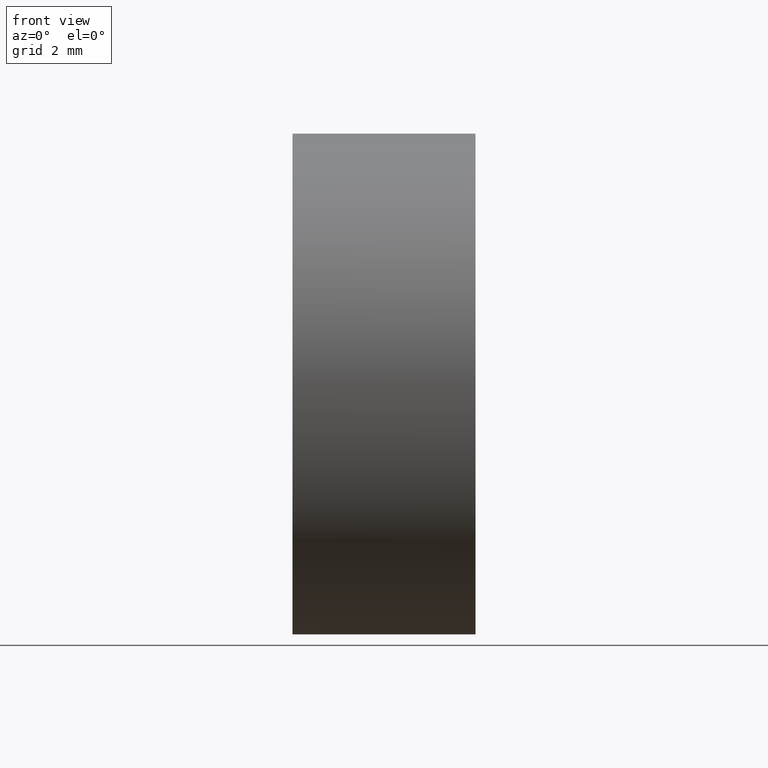
[diagram: clean part render]
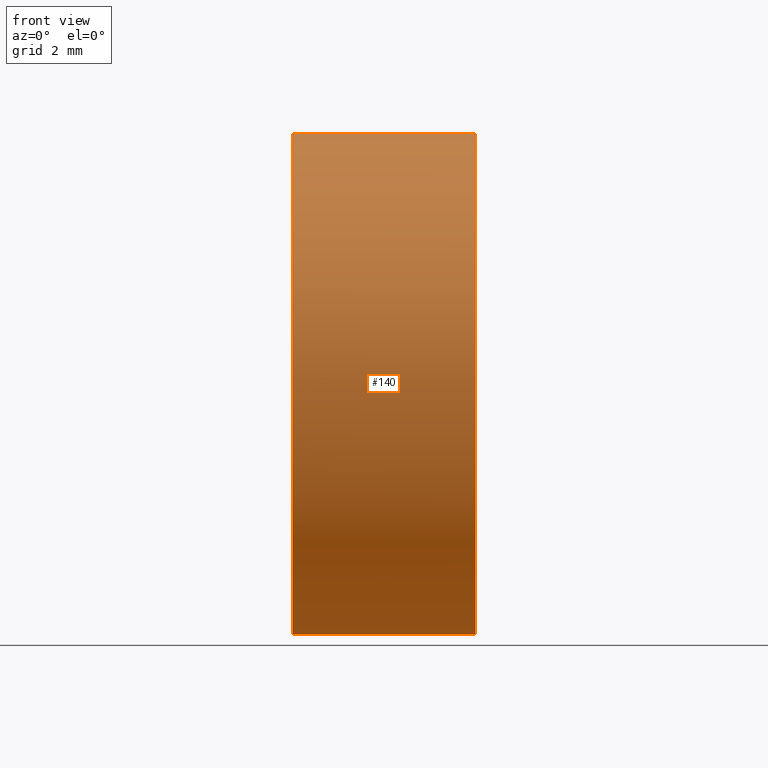
[diagram: same view with one face highlighted and labeled with its STEP entity id]
A machine part, front view. The second image highlights one B-rep face of the part: STEP entity #140.
In plain terms, the highlighted cylindrical surface (partial cylindrical patch) has radius 5 mm, axis along (-1, -0, -0).
Its self-contained STEP definition (entity closure, byte-faithful):
#6 = CARTESIAN_POINT ( 'NONE',  ( 41.36582732549757700, 26.06225218280608000, -4.999999999999997300 ) ) ;
#7 = DIRECTION ( 'NONE',  ( -1.000000000000000000, -0.0000000000000000000, -0.0000000000000000000 ) ) ;
#15 = EDGE_CURVE ( 'NONE', #53, #137, #97, .T. ) ;
#20 = DIRECTION ( 'NONE',  ( 0.0000000000000000000, 0.0000000000000000000, 1.000000000000000000 ) ) ;
#22 = CARTESIAN_POINT ( 'NONE',  ( 45.01989884529392300, 21.06225218280608800, 0.0000000000000000000 ) ) ;
#26 = CYLINDRICAL_SURFACE ( 'NONE', #103, 4.999999999999997300 ) ;
#33 = AXIS2_PLACEMENT_3D ( 'NONE', #124, #121, #20 ) ;
#35 = DIRECTION ( 'NONE',  ( -1.000000000000000000, -0.0000000000000000000, -0.0000000000000000000 ) ) ;
#37 = ORIENTED_EDGE ( 'NONE', *, *, #15, .T. ) ;
#38 = AXIS2_PLACEMENT_3D ( 'NONE', #105, #156, #44 ) ;
#44 = DIRECTION ( 'NONE',  ( 0.0000000000000000000, 0.0000000000000000000, 1.000000000000000000 ) ) ;
#45 = CARTESIAN_POINT ( 'NONE',  ( 39.73650001336414300, 26.06225218280608000, -4.999999999999997300 ) ) ;
#48 = DIRECTION ( 'NONE',  ( -1.000000000000000000, -0.0000000000000000000, -0.0000000000000000000 ) ) ;
#52 = ORIENTED_EDGE ( 'NONE', *, *, #131, .F. ) ;
#53 = VERTEX_POINT ( 'NONE', #169 ) ;
#78 = DIRECTION ( 'NONE',  ( 0.0000000000000000000, 0.0000000000000000000, 1.000000000000000000 ) ) ;
#87 = EDGE_CURVE ( 'NONE', #137, #163, #117, .T. ) ;
#88 = VERTEX_POINT ( 'NONE', #173 ) ;
#95 = CARTESIAN_POINT ( 'NONE',  ( 45.01989884529392300, 26.06225218280608000, 4.999999999999997300 ) ) ;
#97 = CIRCLE ( 'NONE', #38, 4.999999999999997300 ) ;
#102 = LINE ( 'NONE', #114, #118 ) ;
#103 = AXIS2_PLACEMENT_3D ( 'NONE', #182, #7, #125 ) ;
#105 = CARTESIAN_POINT ( 'NONE',  ( 45.01989884529392300, 26.06225218280608000, 0.0000000000000000000 ) ) ;
#110 = EDGE_CURVE ( 'NONE', #136, #88, #184, .T. ) ;
#111 = ORIENTED_EDGE ( 'NONE', *, *, #110, .F. ) ;
#114 = CARTESIAN_POINT ( 'NONE',  ( 39.73650001336414300, 26.06225218280608000, 4.999999999999997300 ) ) ;
#116 = LINE ( 'NONE', #45, #171 ) ;
#117 = CIRCLE ( 'NONE', #145, 4.999999999999997300 ) ;
#118 = VECTOR ( 'NONE', #35, 1000.000000000000000 ) ;
#121 = DIRECTION ( 'NONE',  ( -1.000000000000000000, -0.0000000000000000000, -0.0000000000000000000 ) ) ;
#124 = CARTESIAN_POINT ( 'NONE',  ( 41.36582732549757700, 26.06225218280608000, 0.0000000000000000000 ) ) ;
#125 = DIRECTION ( 'NONE',  ( 0.0000000000000000000, 0.0000000000000000000, 1.000000000000000000 ) ) ;
#126 = ORIENTED_EDGE ( 'NONE', *, *, #165, .T. ) ;
#131 = EDGE_CURVE ( 'NONE', #53, #136, #116, .T. ) ;
#136 = VERTEX_POINT ( 'NONE', #6 ) ;
#137 = VERTEX_POINT ( 'NONE', #22 ) ;
#140 = ADVANCED_FACE ( 'NONE', ( #185 ), #26, .T. ) ;
#145 = AXIS2_PLACEMENT_3D ( 'NONE', #181, #48, #78 ) ;
#146 = EDGE_LOOP ( 'NONE', ( #52, #37, #167, #126, #111 ) ) ;
#156 = DIRECTION ( 'NONE',  ( -1.000000000000000000, -0.0000000000000000000, -0.0000000000000000000 ) ) ;
#158 = DIRECTION ( 'NONE',  ( -1.000000000000000000, -0.0000000000000000000, -0.0000000000000000000 ) ) ;
#163 = VERTEX_POINT ( 'NONE', #95 ) ;
#165 = EDGE_CURVE ( 'NONE', #163, #88, #102, .T. ) ;
#167 = ORIENTED_EDGE ( 'NONE', *, *, #87, .T. ) ;
#169 = CARTESIAN_POINT ( 'NONE',  ( 45.01989884529392300, 26.06225218280608000, -4.999999999999997300 ) ) ;
#171 = VECTOR ( 'NONE', #158, 1000.000000000000000 ) ;
#173 = CARTESIAN_POINT ( 'NONE',  ( 41.36582732549757700, 26.06225218280608000, 4.999999999999997300 ) ) ;
#181 = CARTESIAN_POINT ( 'NONE',  ( 45.01989884529392300, 26.06225218280608000, 0.0000000000000000000 ) ) ;
#182 = CARTESIAN_POINT ( 'NONE',  ( 39.73650001336414300, 26.06225218280608000, 0.0000000000000000000 ) ) ;
#184 = CIRCLE ( 'NONE', #33, 4.999999999999997300 ) ;
#185 = FACE_OUTER_BOUND ( 'NONE', #146, .T. ) ;